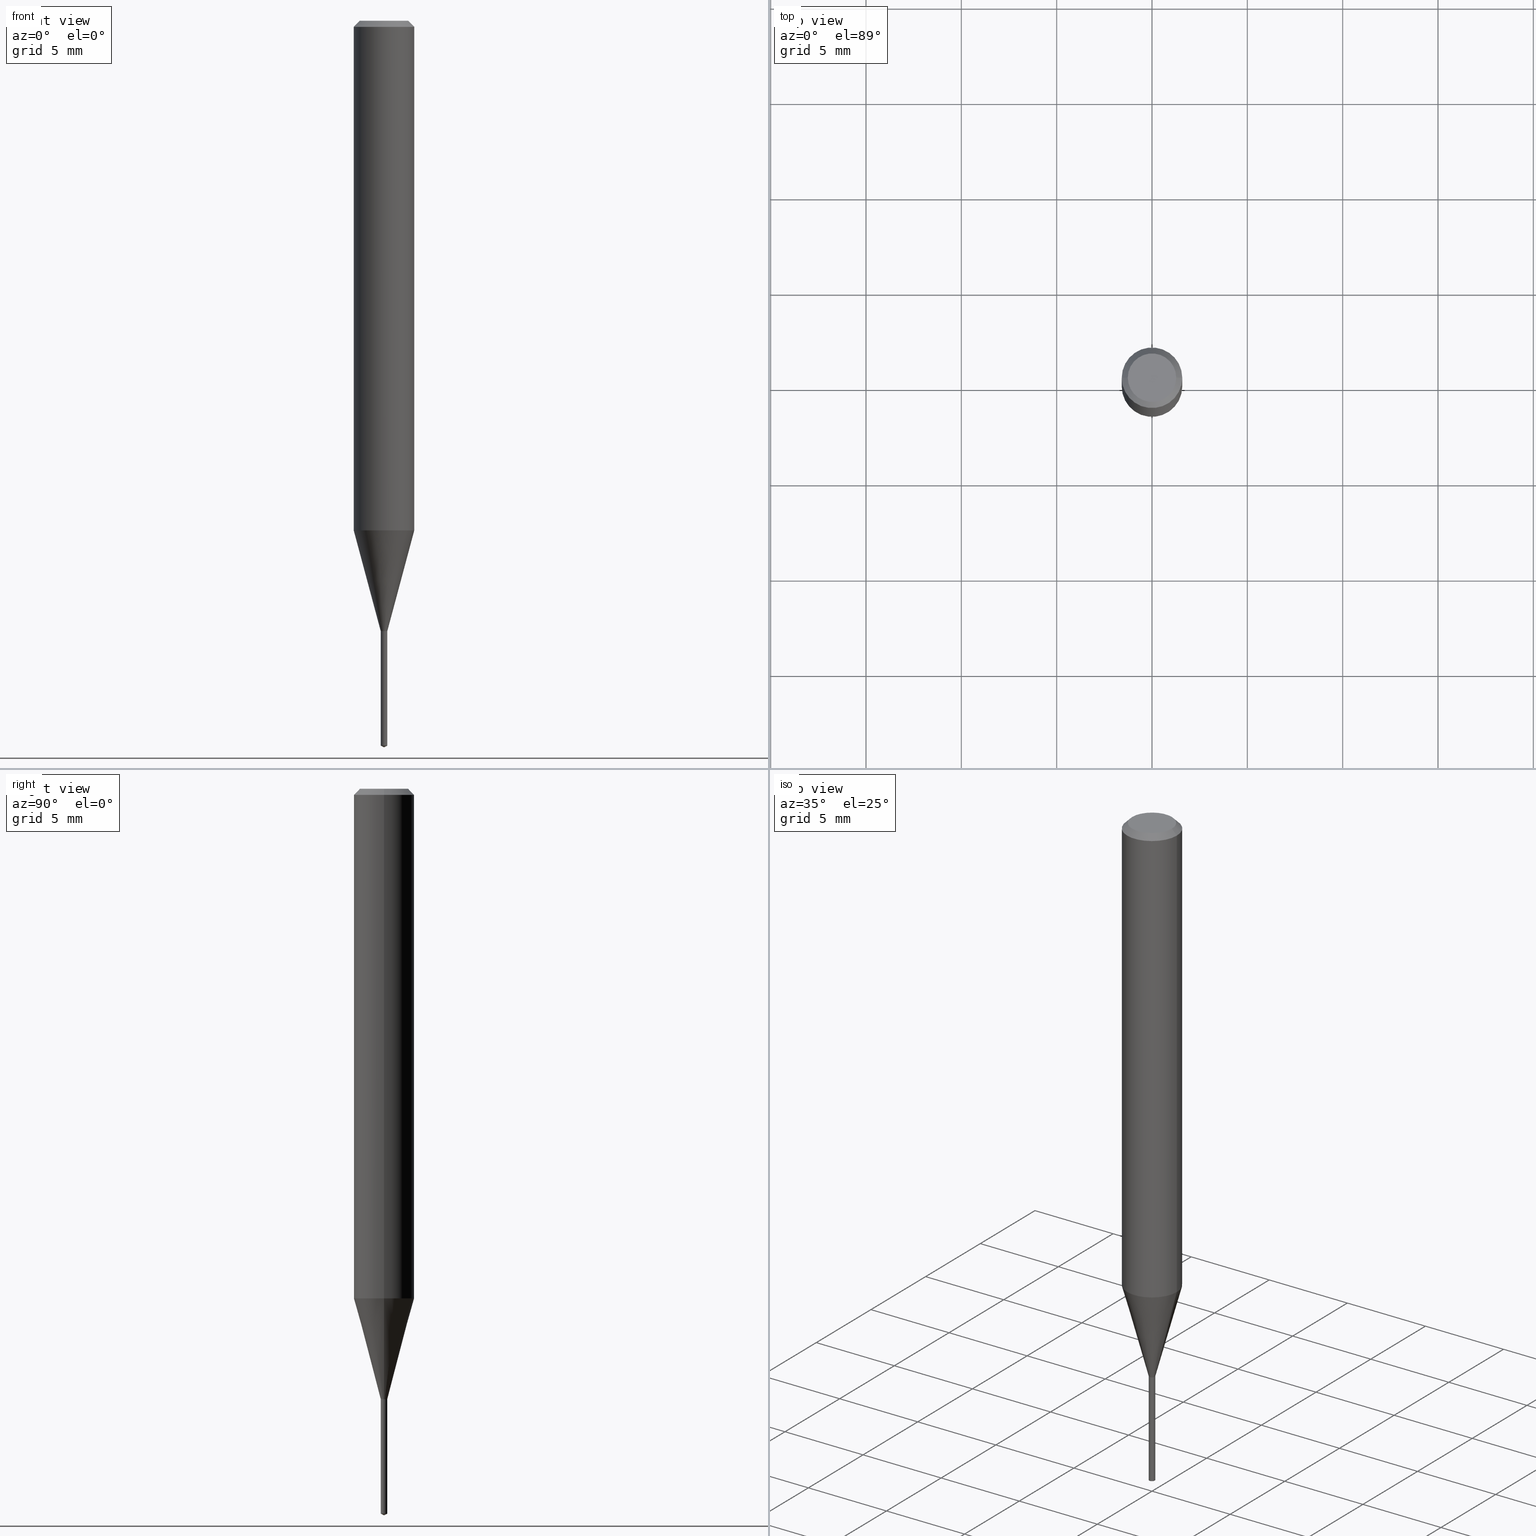
[diagram: canonical four-view strip — front | top / right | iso, engineering-drawing reading convention]
A machine part, canonical four-view strip (front | top / right | iso — engineering-drawing reading convention). The complete STEP part file that produces these views, byte-faithful:
ISO-10303-21;
HEADER;
FILE_DESCRIPTION (( 'STEP AP203' ),
    '1' );
FILE_NAME ('07107.STEP',
    '2024-04-23T19:30:40',
    ( '' ),
    ( '' ),
    'SwSTEP 2.0',
    'SolidWorks 2023',
    '' );
FILE_SCHEMA (( 'CONFIG_CONTROL_DESIGN' ));
ENDSEC;

DATA;
#1 = ORIENTED_EDGE ( 'NONE', *, *, #152, .T. ) ;
#2 = AXIS2_PLACEMENT_3D ( 'NONE', #202, #116, #149 ) ;
#3 = DIRECTION ( 'NONE',  ( -2.441881793894503225E-29, 3.496618144603393422E-15, 1.000000000000000000 ) ) ;
#4 = CC_DESIGN_PERSON_AND_ORGANIZATION_ASSIGNMENT ( #57, #292, ( #89 ) ) ;
#5 = CARTESIAN_POINT ( 'NONE',  ( 2.573460162125579230E-29, -3.674219073901972026E-15, -1.052338167478040765 ) ) ;
#6 = DIRECTION ( 'NONE',  ( 2.438088387897960049E-29, -3.491481338843145188E-15, -1.000000000000000000 ) ) ;
#7 = DIRECTION ( 'NONE',  ( -6.982962677686268288E-15, -1.000000000000000000, 3.520397390770522895E-15 ) ) ;
#8 = DIRECTION ( 'NONE',  ( -2.445468806185136597E-29, 3.491481338843145583E-15, 1.000000000000000000 ) ) ;
#9 =( LENGTH_UNIT ( ) NAMED_UNIT ( * ) SI_UNIT ( $, .METRE. ) );
#10 = ADVANCED_FACE ( 'NONE', ( #219 ), #378, .T. ) ;
#11 = LINE ( 'NONE', #237, #486 ) ;
#12 = CIRCLE ( 'NONE', #127, 0.006749999999999999056 ) ;
#13 = DIRECTION ( 'NONE',  ( -6.982962677686265133E-15, -1.000000000000000000, 0.000000000000000000 ) ) ;
#14 = CARTESIAN_POINT ( 'NONE',  ( 0.04999999999999999584, -4.077247707424184705E-16, 3.380025165673154903E-19 ) ) ;
#15 = CARTESIAN_POINT ( 'NONE',  ( 2.983471943545866670E-29, -4.259607233388637524E-15, -1.220000000000000195 ) ) ;
#16 = CARTESIAN_POINT ( 'NONE',  ( 0.006249999999999998612, -4.303250750124177480E-15, -1.220000000000000195 ) ) ;
#17 = ORIENTED_EDGE ( 'NONE', *, *, #305, .T. ) ;
#18 = APPROVAL_STATUS ( 'not_yet_approved' ) ;
#19 = CARTESIAN_POINT ( 'NONE',  ( 2.982249209142773869E-29, -4.257861492719216809E-15, -1.219500000000000028 ) ) ;
#20 = VERTEX_POINT ( 'NONE', #104 ) ;
#21 = VECTOR ( 'NONE', #126, 39.37007874015748143 ) ;
#22 = ADVANCED_FACE ( 'NONE', ( #254 ), #408, .F. ) ;
#23 = APPROVAL_DATE_TIME ( #241, #320 ) ;
#24 = FACE_OUTER_BOUND ( 'NONE', #169, .T. ) ;
#25 = PERSON_AND_ORGANIZATION ( #69, #390 ) ;
#26 = ORIENTED_EDGE ( 'NONE', *, *, #401, .F. ) ;
#27 = ADVANCED_FACE ( 'NONE', ( #257 ), #336, .T. ) ;
#28 = VERTEX_POINT ( 'NONE', #384 ) ;
#29 = AXIS2_PLACEMENT_3D ( 'NONE', #121, #76, #84 ) ;
#30 = CALENDAR_DATE ( 2024, 23, 4 ) ;
#31 = CC_DESIGN_APPROVAL ( #459, ( #461 ) ) ;
#32 = VERTEX_POINT ( 'NONE', #381 ) ;
#33 = PRODUCT_DEFINITION_SHAPE ( 'NONE', 'NONE',  #89 ) ;
#34 = DESIGN_CONTEXT ( 'detailed design', #451, 'design' ) ;
#35 = ORIENTED_EDGE ( 'NONE', *, *, #124, .T. ) ;
#36 = EDGE_LOOP ( 'NONE', ( #339, #414 ) ) ;
#37 = ORIENTED_EDGE ( 'NONE', *, *, #282, .F. ) ;
#38 = VERTEX_POINT ( 'NONE', #49 ) ;
#39 = DIRECTION ( 'NONE',  ( -2.445468806185136597E-29, 3.491481338843145583E-15, 1.000000000000000000 ) ) ;
#40 = EDGE_CURVE ( 'NONE', #376, #32, #197, .T. ) ;
#41 = DIRECTION ( 'NONE',  ( 0.7071067811865225927, -2.468850131081995948E-15, 0.7071067811865724417 ) ) ;
#42 = CIRCLE ( 'NONE', #184, 0.06250000000000013878 ) ;
#43 = CIRCLE ( 'NONE', #353, 0.06250000000000013878 ) ;
#44 = CARTESIAN_POINT ( 'NONE',  ( 0.000000000000000000, 0.000000000000000000, 0.000000000000000000 ) ) ;
#45 = FACE_OUTER_BOUND ( 'NONE', #260, .T. ) ;
#46 = DIRECTION ( 'NONE',  ( 1.000000000000000000, -6.982962677686266711E-15, 0.000000000000000000 ) ) ;
#47 = EDGE_CURVE ( 'NONE', #175, #38, #115, .T. ) ;
#48 = LINE ( 'NONE', #345, #322 ) ;
#49 = CARTESIAN_POINT ( 'NONE',  ( 0.06250000000000000000, -4.800786840909313294E-16, -0.01250000000000008396 ) ) ;
#50 = DIRECTION ( 'NONE',  ( -2.441881793894503225E-29, 3.496618144603393422E-15, 1.000000000000000000 ) ) ;
#51 = CARTESIAN_POINT ( 'NONE',  ( -4.713499807434570159E-17, -0.006750000000005226646, -1.496852423307453828 ) ) ;
#52 = DIRECTION ( 'NONE',  ( -2.445468806185136597E-29, 3.491481338843145583E-15, 1.000000000000000000 ) ) ;
#53 = CARTESIAN_POINT ( 'NONE',  ( 3.671651748258232089E-29, -5.232393410850085965E-15, -1.500000000000000222 ) ) ;
#54 = ORIENTED_EDGE ( 'NONE', *, *, #342, .F. ) ;
#55 =( NAMED_UNIT ( * ) SI_UNIT ( $, .STERADIAN. ) SOLID_ANGLE_UNIT ( ) );
#56 = DIRECTION ( 'NONE',  ( -2.445468806185136597E-29, 3.491481338843145583E-15, 1.000000000000000000 ) ) ;
#57 = PERSON_AND_ORGANIZATION ( #69, #390 ) ;
#58 = CARTESIAN_POINT ( 'NONE',  ( -9.246987965394727264E-28, 1.324234713634213705E-13, 37.87007874015748143 ) ) ;
#59 = CONICAL_SURFACE ( 'NONE', #29, 0.006249999999999998612, 0.7853981633974130849 ) ;
#60 = ORIENTED_EDGE ( 'NONE', *, *, #457, .T. ) ;
#61 = EDGE_LOOP ( 'NONE', ( #1, #440, #358, #132 ) ) ;
#62 = EDGE_CURVE ( 'NONE', #38, #301, #238, .T. ) ;
#63 = CALENDAR_DATE ( 2024, 23, 4 ) ;
#64 = ORIENTED_EDGE ( 'NONE', *, *, #450, .F. ) ;
#65 = CONICAL_SURFACE ( 'NONE', #200, 84.42940631927268669, 1.134464013796308457 ) ;
#66 = ORIENTED_EDGE ( 'NONE', *, *, #272, .F. ) ;
#67 = VERTEX_POINT ( 'NONE', #14 ) ;
#68 = ADVANCED_FACE ( 'NONE', ( #346 ), #455, .F. ) ;
#69 = PERSON ( 'UNSPECIFIED', 'UNSPECIFIED', 'UNSPECIFIED', ('UNSPECIFIED'), ('UNSPECIFIED'), ('UNSPECIFIED') ) ;
#70 = VERTEX_POINT ( 'NONE', #274 ) ;
#71 = AXIS2_PLACEMENT_3D ( 'NONE', #273, #467, #429 ) ;
#72 = EDGE_LOOP ( 'NONE', ( #243, #489, #222 ) ) ;
#73 = EDGE_CURVE ( 'NONE', #143, #252, #352, .T. ) ;
#74 = DIRECTION ( 'NONE',  ( -2.445468806185136597E-29, 3.491481338843145583E-15, 1.000000000000000000 ) ) ;
#75 = LINE ( 'NONE', #83, #134 ) ;
#76 = DIRECTION ( 'NONE',  ( -2.445468806185136597E-29, 3.491481338843145583E-15, 1.000000000000000000 ) ) ;
#77 = FACE_OUTER_BOUND ( 'NONE', #36, .T. ) ;
#78 = AXIS2_PLACEMENT_3D ( 'NONE', #240, #164, #93 ) ;
#79 = DIRECTION ( 'NONE',  ( 0.7071067811865452413, -7.319954787623248157E-15, -0.7071067811865497932 ) ) ;
#80 = EDGE_CURVE ( 'NONE', #67, #38, #11, .T. ) ;
#81 = LINE ( 'NONE', #422, #185 ) ;
#82 = DIRECTION ( 'NONE',  ( -6.328713451373352024E-15, -0.9063077870366459399, 0.4226182617407078790 ) ) ;
#83 = CARTESIAN_POINT ( 'NONE',  ( 0.006249999999999998612, -4.303250750124177480E-15, -1.220000000000000195 ) ) ;
#84 = DIRECTION ( 'NONE',  ( 1.000000000000000000, -6.982962677686295898E-15, 0.000000000000000000 ) ) ;
#85 = CARTESIAN_POINT ( 'NONE',  ( 4.796163466383658464E-17, 0.006749999999995738575, -1.220000000000000195 ) ) ;
#86 = LINE ( 'NONE', #286, #344 ) ;
#87 = LOCAL_TIME ( 15, 30, 40.00000000000000000, #136 ) ;
#88 = PERSON_AND_ORGANIZATION ( #69, #390 ) ;
#89 = PRODUCT_DEFINITION ( 'UNKNOWN', '', #375, #34 ) ;
#90 = DIRECTION ( 'NONE',  ( -2.445468806185136597E-29, 3.491481338843145583E-15, 1.000000000000000000 ) ) ;
#91 = ORIENTED_EDGE ( 'NONE', *, *, #80, .T. ) ;
#92 = DIRECTION ( 'NONE',  ( 1.000000000000000000, 0.000000000000000000, 0.000000000000000000 ) ) ;
#93 = DIRECTION ( 'NONE',  ( 1.000000000000000000, -6.982962677686295898E-15, 0.000000000000000000 ) ) ;
#94 = ORIENTED_EDGE ( 'NONE', *, *, #253, .F. ) ;
#95 = COORDINATED_UNIVERSAL_TIME_OFFSET ( 5, 0, .BEHIND. ) ;
#96 = FACE_OUTER_BOUND ( 'NONE', #72, .T. ) ;
#97 = AXIS2_PLACEMENT_3D ( 'NONE', #269, #39, #46 ) ;
#98 = VERTEX_POINT ( 'NONE', #225 ) ;
#99 = LOCAL_TIME ( 15, 30, 40.00000000000000000, #325 ) ;
#100 = ADVANCED_FACE ( 'NONE', ( #430 ), #176, .T. ) ;
#101 = APPROVAL_ROLE ( '' ) ;
#102 = ORIENTED_EDGE ( 'NONE', *, *, #347, .F. ) ;
#103 = MANIFOLD_SOLID_BREP ( 'Body-Move/Copy2[2]', #215 ) ;
#104 = CARTESIAN_POINT ( 'NONE',  ( -0.06250000000000013878, -3.230129864051909015E-15, -1.052338167478040765 ) ) ;
#105 = ORIENTED_EDGE ( 'NONE', *, *, #298, .T. ) ;
#106 = AXIS2_PLACEMENT_3D ( 'NONE', #209, #90, #396 ) ;
#107 = ADVANCED_FACE ( 'NONE', ( #161 ), #59, .T. ) ;
#108 = CARTESIAN_POINT ( 'NONE',  ( 2.983471943545866670E-29, -4.259607233388637524E-15, -1.220000000000000195 ) ) ;
#109 = EDGE_LOOP ( 'NONE', ( #287, #371, #435, #64 ) ) ;
#110 = ORIENTED_EDGE ( 'NONE', *, *, #416, .T. ) ;
#111 = ADVANCED_FACE ( 'NONE', ( #227 ), #386, .T. ) ;
#112 = DIRECTION ( 'NONE',  ( -1.000000000000000000, 6.982962677686265922E-15, -4.876176775795935793E-29 ) ) ;
#113 = CYLINDRICAL_SURFACE ( 'NONE', #289, 0.006749999999999999056 ) ;
#114 = LINE ( 'NONE', #85, #270 ) ;
#115 = LINE ( 'NONE', #423, #208 ) ;
#116 = DIRECTION ( 'NONE',  ( 2.445468806185136597E-29, -3.491481338843145583E-15, -1.000000000000000000 ) ) ;
#117 = AXIS2_PLACEMENT_3D ( 'NONE', #163, #52, #431 ) ;
#118 = CONICAL_SURFACE ( 'NONE', #177, 84.42940631927268669, 1.134464013796308457 ) ;
#119 = DIRECTION ( 'NONE',  ( -2.445468806185136597E-29, 3.491481338843145583E-15, 1.000000000000000000 ) ) ;
#120 = CARTESIAN_POINT ( 'NONE',  ( -0.006249999999999998612, -4.212549085229521008E-15, -1.220000000000000195 ) ) ;
#121 = CARTESIAN_POINT ( 'NONE',  ( 2.983471943545866670E-29, -4.259607233388637524E-15, -1.220000000000000195 ) ) ;
#122 = DIRECTION ( 'NONE',  ( -2.445468806185136597E-29, 3.491481338843145583E-15, 1.000000000000000000 ) ) ;
#123 = CYLINDRICAL_SURFACE ( 'NONE', #441, 0.006749999999999999056 ) ;
#124 = EDGE_CURVE ( 'NONE', #211, #98, #389, .T. ) ;
#125 = AXIS2_PLACEMENT_3D ( 'NONE', #138, #294, #446 ) ;
#126 = DIRECTION ( 'NONE',  ( -0.7071067811865452413, 2.468850131082233000E-15, -0.7071067811865497932 ) ) ;
#127 = AXIS2_PLACEMENT_3D ( 'NONE', #356, #50, #226 ) ;
#128 = DIRECTION ( 'NONE',  ( -2.445468806185136877E-29, 3.491481338843145188E-15, 1.000000000000000000 ) ) ;
#129 = ORIENTED_EDGE ( 'NONE', *, *, #347, .T. ) ;
#130 = PERSON_AND_ORGANIZATION ( #69, #390 ) ;
#131 = FACE_OUTER_BOUND ( 'NONE', #444, .T. ) ;
#132 = ORIENTED_EDGE ( 'NONE', *, *, #47, .F. ) ;
#133 = VECTOR ( 'NONE', #82, 39.37007874015748143 ) ;
#134 = VECTOR ( 'NONE', #41, 39.37007874015748143 ) ;
#135 = APPROVAL_PERSON_ORGANIZATION ( #88, #320, #101 ) ;
#136 = COORDINATED_UNIVERSAL_TIME_OFFSET ( 5, 0, .BEHIND. ) ;
#137 = DIMENSIONAL_EXPONENTS ( 1.000000000000000000, 0.000000000000000000, 0.000000000000000000, 0.000000000000000000, 0.000000000000000000, 0.000000000000000000, 0.000000000000000000 ) ;
#138 = CARTESIAN_POINT ( 'NONE',  ( 0.000000000000000000, 0.000000000000000000, 0.000000000000000000 ) ) ;
#139 = CC_DESIGN_PERSON_AND_ORGANIZATION_ASSIGNMENT ( #395, #475, ( #375 ) ) ;
#140 = VERTEX_POINT ( 'NONE', #195 ) ;
#141 = AXIS2_PLACEMENT_3D ( 'NONE', #108, #188, #341 ) ;
#142 = PRODUCT_RELATED_PRODUCT_CATEGORY ( 'detail', '', ( #483 ) ) ;
#143 = VERTEX_POINT ( 'NONE', #51 ) ;
#144 = ORIENTED_EDGE ( 'NONE', *, *, #366, .F. ) ;
#145 = EDGE_CURVE ( 'NONE', #98, #32, #379, .T. ) ;
#146 = ORIENTED_EDGE ( 'NONE', *, *, #235, .T. ) ;
#147 = CIRCLE ( 'NONE', #156, 0.006749999999999999056 ) ;
#148 = FACE_OUTER_BOUND ( 'NONE', #178, .T. ) ;
#149 = DIRECTION ( 'NONE',  ( -1.000000000000000000, 6.982962677686266711E-15, 0.000000000000000000 ) ) ;
#150 = CARTESIAN_POINT ( 'NONE',  ( -4.132873053354867254E-48, 5.900647395337818946E-34, 1.690012582823346072E-19 ) ) ;
#151 = DIRECTION ( 'NONE',  ( 1.000000000000000000, -6.982962677686262766E-15, 0.000000000000000000 ) ) ;
#152 = EDGE_CURVE ( 'NONE', #175, #20, #42, .T. ) ;
#153 = DIRECTION ( 'NONE',  ( 1.000000000000000000, -6.982962677686262766E-15, 0.000000000000000000 ) ) ;
#154 = AXIS2_PLACEMENT_3D ( 'NONE', #44, #388, #458 ) ;
#155 = DIRECTION ( 'NONE',  ( -2.441881793894502945E-29, 3.496618144603393422E-15, 1.000000000000000000 ) ) ;
#156 = AXIS2_PLACEMENT_3D ( 'NONE', #275, #462, #268 ) ;
#157 = LOCAL_TIME ( 15, 30, 40.00000000000000000, #95 ) ;
#158 = CARTESIAN_POINT ( 'NONE',  ( -0.006249999999999998612, -4.215198312403631420E-15, -1.220000000000000195 ) ) ;
#159 = APPLICATION_CONTEXT ( 'configuration controlled 3d designs of mechanical parts and assemblies' ) ;
#160 = DIRECTION ( 'NONE',  ( -2.445468806185136597E-29, 3.491481338843145583E-15, 1.000000000000000000 ) ) ;
#161 = FACE_OUTER_BOUND ( 'NONE', #224, .T. ) ;
#162 = EDGE_CURVE ( 'NONE', #20, #301, #454, .T. ) ;
#163 = CARTESIAN_POINT ( 'NONE',  ( -8.265746106709734507E-48, 1.180129479067563789E-33, 3.380025165646692144E-19 ) ) ;
#164 = DIRECTION ( 'NONE',  ( -2.445468806185136597E-29, 3.491481338843145583E-15, 1.000000000000000000 ) ) ;
#165 = ORIENTED_EDGE ( 'NONE', *, *, #80, .F. ) ;
#166 = LENGTH_MEASURE_WITH_UNIT ( LENGTH_MEASURE( 0.02539999999999999897 ), #9 );
#167 = DIRECTION ( 'NONE',  ( -2.445468806185136597E-29, 3.491481338843145583E-15, 1.000000000000000000 ) ) ;
#168 = CIRCLE ( 'NONE', #338, 0.06250000000000000000 ) ;
#169 = EDGE_LOOP ( 'NONE', ( #165, #369, #397, #245 ) ) ;
#170 = COORDINATED_UNIVERSAL_TIME_OFFSET ( 5, 0, .BEHIND. ) ;
#171 = ADVANCED_FACE ( 'NONE', ( #148 ), #113, .T. ) ;
#172 = DIRECTION ( 'NONE',  ( -6.982962677686268288E-15, -1.000000000000000000, 3.520397390770522895E-15 ) ) ;
#173 = EDGE_LOOP ( 'NONE', ( #102, #91, #280, #37 ) ) ;
#174 = DATE_AND_TIME ( #247, #157 ) ;
#175 = VERTEX_POINT ( 'NONE', #310 ) ;
#176 = CONICAL_SURFACE ( 'NONE', #337, 0.006749999999999999056, 0.2617993877991569573 ) ;
#177 = AXIS2_PLACEMENT_3D ( 'NONE', #58, #249, #172 ) ;
#178 = EDGE_LOOP ( 'NONE', ( #394, #335, #221, #340 ) ) ;
#179 = DATE_TIME_ROLE ( 'creation_date' ) ;
#180 = EDGE_LOOP ( 'NONE', ( #66, #183 ) ) ;
#181 = EDGE_CURVE ( 'NONE', #478, #143, #460, .T. ) ;
#182 = ORIENTED_EDGE ( 'NONE', *, *, #457, .F. ) ;
#183 = ORIENTED_EDGE ( 'NONE', *, *, #416, .F. ) ;
#184 = AXIS2_PLACEMENT_3D ( 'NONE', #355, #8, #153 ) ;
#185 = VECTOR ( 'NONE', #196, 39.37007874015748854 ) ;
#186 = EDGE_CURVE ( 'NONE', #478, #252, #234, .T. ) ;
#187 = ORIENTED_EDGE ( 'NONE', *, *, #162, .F. ) ;
#188 = DIRECTION ( 'NONE',  ( -2.441881793894503225E-29, 3.496618144603393422E-15, 1.000000000000000000 ) ) ;
#189 = CARTESIAN_POINT ( 'NONE',  ( 3.082268883315746308E-29, -4.400663079477901323E-15, -1.260399999999999965 ) ) ;
#190 = CIRCLE ( 'NONE', #71, 0.006749999999999999056 ) ;
#191 = DIRECTION ( 'NONE',  ( 1.000000000000000000, -6.982962677686295898E-15, 0.000000000000000000 ) ) ;
#192 = CARTESIAN_POINT ( 'NONE',  ( 3.082268883315746308E-29, -4.400663079477901323E-15, -1.260399999999999965 ) ) ;
#193 = ADVANCED_FACE ( 'NONE', ( #131 ), #362, .T. ) ;
#194 = CARTESIAN_POINT ( 'NONE',  ( -9.246987965394727264E-28, 1.324234713634213705E-13, 37.87007874015748143 ) ) ;
#195 = CARTESIAN_POINT ( 'NONE',  ( 4.796163466384340706E-17, 0.006749999999995738575, -1.220000000000000195 ) ) ;
#196 = DIRECTION ( 'NONE',  ( 0.2588190451025279559, 1.565188264969568522E-15, 0.9659258262890662028 ) ) ;
#197 = LINE ( 'NONE', #158, #469 ) ;
#198 = VECTOR ( 'NONE', #349, 39.37007874015748143 ) ;
#199 = DIRECTION ( 'NONE',  ( -2.441881793894503225E-29, 3.496618144603393422E-15, 1.000000000000000000 ) ) ;
#200 = AXIS2_PLACEMENT_3D ( 'NONE', #194, #348, #7 ) ;
#201 = CARTESIAN_POINT ( 'NONE',  ( -0.006749999999999999056, 4.796163466380675584E-17, -3.320281185922061164E-31 ) ) ;
#202 = CARTESIAN_POINT ( 'NONE',  ( 3.056836007731441415E-31, -4.364351673553961684E-17, -0.01250000000000008396 ) ) ;
#203 = DIRECTION ( 'NONE',  ( -2.445468806185136597E-29, 3.491481338843145583E-15, 1.000000000000000000 ) ) ;
#204 = DATE_TIME_ROLE ( 'classification_date' ) ;
#205 = DIRECTION ( 'NONE',  ( 1.000000000000000000, -6.982962677686265922E-15, 4.876194921942043128E-29 ) ) ;
#206 = ORIENTED_EDGE ( 'NONE', *, *, #392, .T. ) ;
#207 = DATE_AND_TIME ( #30, #99 ) ;
#208 = VECTOR ( 'NONE', #463, 39.37007874015748143 ) ;
#209 = CARTESIAN_POINT ( 'NONE',  ( 3.082268883315746308E-29, -4.400663079477901323E-15, -1.260399999999999965 ) ) ;
#210 = LOCAL_TIME ( 15, 30, 40.00000000000000000, #473 ) ;
#211 = VERTEX_POINT ( 'NONE', #242 ) ;
#212 = DATE_AND_TIME ( #433, #87 ) ;
#213 = CALENDAR_DATE ( 2024, 23, 4 ) ;
#214 = DATE_AND_TIME ( #63, #411 ) ;
#215 = CLOSED_SHELL ( 'NONE', ( #385, #359, #27, #193, #259, #22, #100, #111, #309, #68, #266, #107 ) ) ;
#216 = EDGE_CURVE ( 'NONE', #301, #38, #168, .T. ) ;
#217 = CIRCLE ( 'NONE', #333, 0.04999999999999999584 ) ;
#218 = VERTEX_POINT ( 'NONE', #16 ) ;
#219 = FACE_OUTER_BOUND ( 'NONE', #250, .T. ) ;
#220 = CC_DESIGN_DATE_AND_TIME_ASSIGNMENT ( #214, #204, ( #461 ) ) ;
#221 = ORIENTED_EDGE ( 'NONE', *, *, #329, .F. ) ;
#222 = ORIENTED_EDGE ( 'NONE', *, *, #445, .F. ) ;
#223 = AXIS2_PLACEMENT_3D ( 'NONE', #264, #3, #308 ) ;
#224 = EDGE_LOOP ( 'NONE', ( #324, #110, #60, #413 ) ) ;
#225 = CARTESIAN_POINT ( 'NONE',  ( -0.006749999999999999056, -4.281300651434752064E-15, -1.260399999999999965 ) ) ;
#226 = DIRECTION ( 'NONE',  ( -6.982962677686265133E-15, -1.000000000000000000, 0.000000000000000000 ) ) ;
#227 = FACE_OUTER_BOUND ( 'NONE', #258, .T. ) ;
#228 = CC_DESIGN_PERSON_AND_ORGANIZATION_ASSIGNMENT ( #407, #368, ( #375 ) ) ;
#229 = AXIS2_PLACEMENT_3D ( 'NONE', #279, #437, #432 ) ;
#230 = CARTESIAN_POINT ( 'NONE',  ( 2.983471943545866670E-29, -4.259607233388637524E-15, -1.220000000000000195 ) ) ;
#231 = DIRECTION ( 'NONE',  ( 1.000000000000000000, -6.982962677686226479E-15, 0.000000000000000000 ) ) ;
#232 = CC_DESIGN_PERSON_AND_ORGANIZATION_ASSIGNMENT ( #25, #361, ( #461 ) ) ;
#233 = CARTESIAN_POINT ( 'NONE',  ( 3.662822690841755118E-29, -5.244927216905089936E-15, -1.500000000000000222 ) ) ;
#234 = LINE ( 'NONE', #53, #302 ) ;
#235 = EDGE_CURVE ( 'NONE', #98, #20, #86, .T. ) ;
#236 = DIRECTION ( 'NONE',  ( 6.982962677686265922E-15, 1.000000000000000000, -3.496618144603393422E-15 ) ) ;
#237 = CARTESIAN_POINT ( 'NONE',  ( 0.06250000000000000000, -4.724246415962603826E-16, -0.01250000000000008396 ) ) ;
#238 = CIRCLE ( 'NONE', #97, 0.06250000000000000000 ) ;
#239 = FACE_OUTER_BOUND ( 'NONE', #173, .T. ) ;
#240 = CARTESIAN_POINT ( 'NONE',  ( 2.983471943545866670E-29, -4.259607233388637524E-15, -1.220000000000000195 ) ) ;
#241 = DATE_AND_TIME ( #213, #210 ) ;
#242 = CARTESIAN_POINT ( 'NONE',  ( 0.006749999999999999056, -4.447798077552283497E-15, -1.260399999999999965 ) ) ;
#243 = ORIENTED_EDGE ( 'NONE', *, *, #186, .F. ) ;
#244 = CARTESIAN_POINT ( 'NONE',  ( -0.06250000000000000000, -1.414842085468692191E-15, -0.01250000000000008396 ) ) ;
#245 = ORIENTED_EDGE ( 'NONE', *, *, #216, .T. ) ;
#246 = ADVANCED_FACE ( 'NONE', ( #96 ), #118, .T. ) ;
#247 = CALENDAR_DATE ( 2024, 23, 4 ) ;
#248 = CONICAL_SURFACE ( 'NONE', #2, 0.06250000000000000000, 0.7853981633974450594 ) ;
#249 = DIRECTION ( 'NONE',  ( -2.441881793894503225E-29, 3.496618144603393422E-15, 1.000000000000000000 ) ) ;
#250 = EDGE_LOOP ( 'NONE', ( #144, #485, #405, #54 ) ) ;
#251 = SHAPE_DEFINITION_REPRESENTATION ( #33, #297 ) ;
#252 = VERTEX_POINT ( 'NONE', #315 ) ;
#253 = EDGE_CURVE ( 'NONE', #211, #318, #360, .T. ) ;
#254 = FACE_OUTER_BOUND ( 'NONE', #415, .T. ) ;
#255 = AXIS2_PLACEMENT_3D ( 'NONE', #150, #6, #112 ) ;
#256 = CIRCLE ( 'NONE', #404, 0.006249999999999998612 ) ;
#257 = FACE_OUTER_BOUND ( 'NONE', #61, .T. ) ;
#258 = EDGE_LOOP ( 'NONE', ( #187, #261, #299, #481 ) ) ;
#259 = ADVANCED_FACE ( 'NONE', ( #466 ), #123, .F. ) ;
#260 = EDGE_LOOP ( 'NONE', ( #418, #449, #330 ) ) ;
#261 = ORIENTED_EDGE ( 'NONE', *, *, #450, .T. ) ;
#262 = CC_DESIGN_APPROVAL ( #291, ( #89 ) ) ;
#263 = APPROVAL_PERSON_ORGANIZATION ( #130, #459, #442 ) ;
#264 = CARTESIAN_POINT ( 'NONE',  ( 3.659512835615912668E-29, -5.227654440102900244E-15, -1.496852423307453828 ) ) ;
#265 = DIRECTION ( 'NONE',  ( -2.445468806185136597E-29, 3.491481338843145583E-15, 1.000000000000000000 ) ) ;
#266 = ADVANCED_FACE ( 'NONE', ( #283 ), #357, .F. ) ;
#267 = CARTESIAN_POINT ( 'NONE',  ( 2.983471943545866670E-29, -4.259607233388637524E-15, -1.220000000000000195 ) ) ;
#268 = DIRECTION ( 'NONE',  ( 1.000000000000000000, -6.982962677686226479E-15, 0.000000000000000000 ) ) ;
#269 = CARTESIAN_POINT ( 'NONE',  ( 3.056836007731441415E-31, -4.364351673553961684E-17, -0.01250000000000008396 ) ) ;
#270 = VECTOR ( 'NONE', #155, 39.37007874015748143 ) ;
#271 = CARTESIAN_POINT ( 'NONE',  ( 3.662822690841755118E-29, -5.244927216905089936E-15, -1.500000000000000222 ) ) ;
#272 = EDGE_CURVE ( 'NONE', #218, #376, #424, .T. ) ;
#273 = CARTESIAN_POINT ( 'NONE',  ( 2.982249209142773869E-29, -4.257861492719216809E-15, -1.219500000000000028 ) ) ;
#274 = CARTESIAN_POINT ( 'NONE',  ( -4.713499807435245005E-17, -0.006750000000004258670, -1.220000000000000195 ) ) ;
#275 = CARTESIAN_POINT ( 'NONE',  ( 3.082268883315746308E-29, -4.400663079477901323E-15, -1.260399999999999965 ) ) ;
#276 = CARTESIAN_POINT ( 'NONE',  ( 0.000000000000000000, 0.000000000000000000, 0.000000000000000000 ) ) ;
#277 = APPROVAL_ROLE ( '' ) ;
#278 = AXIS2_PLACEMENT_3D ( 'NONE', #230, #383, #236 ) ;
#279 = CARTESIAN_POINT ( 'NONE',  ( 2.983471943545866670E-29, -4.259607233388637524E-15, -1.220000000000000195 ) ) ;
#280 = ORIENTED_EDGE ( 'NONE', *, *, #62, .T. ) ;
#281 =( CONVERSION_BASED_UNIT ( 'INCH', #166 ) LENGTH_UNIT ( ) NAMED_UNIT ( #137 ) );
#282 = EDGE_CURVE ( 'NONE', #28, #301, #323, .T. ) ;
#283 = FACE_OUTER_BOUND ( 'NONE', #180, .T. ) ;
#284 = EDGE_LOOP ( 'NONE', ( #373, #490, #452, #182 ) ) ;
#285 = APPROVAL_STATUS ( 'not_yet_approved' ) ;
#286 = CARTESIAN_POINT ( 'NONE',  ( -0.006749999999999999056, -4.352701444814094321E-15, -1.260399999999999965 ) ) ;
#287 = ORIENTED_EDGE ( 'NONE', *, *, #235, .F. ) ;
#288 = PERSON_AND_ORGANIZATION ( #69, #390 ) ;
#289 = AXIS2_PLACEMENT_3D ( 'NONE', #267, #427, #421 ) ;
#290 = CIRCLE ( 'NONE', #410, 0.006749999999999999056 ) ;
#291 = APPROVAL ( #18, 'UNSPECIFIED' ) ;
#292 = PERSON_AND_ORGANIZATION_ROLE ( 'creator' ) ;
#293 = EDGE_LOOP ( 'NONE', ( #105, #129 ) ) ;
#294 = DIRECTION ( 'NONE',  ( -2.445468806185136597E-29, 3.491481338843145583E-15, 1.000000000000000000 ) ) ;
#295 = CIRCLE ( 'NONE', #117, 0.04999999999999999584 ) ;
#296 = CARTESIAN_POINT ( 'NONE',  ( 0.000000000000000000, 0.000000000000000000, 0.000000000000000000 ) ) ;
#297 = ADVANCED_BREP_SHAPE_REPRESENTATION ( '07107', ( #428, #103, #374 ), #311 ) ;
#298 = EDGE_CURVE ( 'NONE', #28, #67, #217, .T. ) ;
#299 = ORIENTED_EDGE ( 'NONE', *, *, #47, .T. ) ;
#300 = ORIENTED_EDGE ( 'NONE', *, *, #253, .T. ) ;
#301 = VERTEX_POINT ( 'NONE', #244 ) ;
#302 = VECTOR ( 'NONE', #477, 39.37007874015748854 ) ;
#303 = AXIS2_PLACEMENT_3D ( 'NONE', #465, #122, #316 ) ;
#304 = CC_DESIGN_SECURITY_CLASSIFICATION ( #461, ( #375 ) ) ;
#305 = EDGE_CURVE ( 'NONE', #32, #318, #417, .T. ) ;
#306 = DIRECTION ( 'NONE',  ( -2.445468806185136877E-29, 3.491481338843145188E-15, 1.000000000000000000 ) ) ;
#307 = FACE_OUTER_BOUND ( 'NONE', #284, .T. ) ;
#308 = DIRECTION ( 'NONE',  ( -6.982962677686265133E-15, -1.000000000000000000, 0.000000000000000000 ) ) ;
#309 = ADVANCED_FACE ( 'NONE', ( #24 ), #248, .T. ) ;
#310 = CARTESIAN_POINT ( 'NONE',  ( 0.06250000000000013878, -4.110654241257365273E-15, -1.052338167478040765 ) ) ;
#311 =( GEOMETRIC_REPRESENTATION_CONTEXT ( 3 ) GLOBAL_UNCERTAINTY_ASSIGNED_CONTEXT ( ( #472 ) ) GLOBAL_UNIT_ASSIGNED_CONTEXT ( ( #281, #334, #55 ) ) REPRESENTATION_CONTEXT ( 'NONE', 'WORKASPACE' ) );
#312 = CARTESIAN_POINT ( 'NONE',  ( 3.659512835615912668E-29, -5.227654440102900244E-15, -1.496852423307453828 ) ) ;
#313 = DIRECTION ( 'NONE',  ( 1.000000000000000000, -6.982962677686226479E-15, 0.000000000000000000 ) ) ;
#314 = CARTESIAN_POINT ( 'NONE',  ( 3.056836007731441415E-31, -4.364351673553961684E-17, -0.01250000000000008396 ) ) ;
#315 = CARTESIAN_POINT ( 'NONE',  ( 4.796163466384334543E-17, 0.006749999999994772334, -1.496852423307453828 ) ) ;
#316 = DIRECTION ( 'NONE',  ( 1.000000000000000000, -6.982962677686295898E-15, 0.000000000000000000 ) ) ;
#317 = CARTESIAN_POINT ( 'NONE',  ( -0.06250000000000000000, 3.927916506198520587E-16, -0.01250000000000008396 ) ) ;
#318 = VERTEX_POINT ( 'NONE', #387 ) ;
#319 = VECTOR ( 'NONE', #306, 39.37007874015748143 ) ;
#320 = APPROVAL ( #443, 'UNSPECIFIED' ) ;
#321 = APPROVAL_DATE_TIME ( #212, #291 ) ;
#322 = VECTOR ( 'NONE', #456, 39.37007874015748143 ) ;
#323 = LINE ( 'NONE', #317, #21 ) ;
#324 = ORIENTED_EDGE ( 'NONE', *, *, #40, .F. ) ;
#325 = COORDINATED_UNIVERSAL_TIME_OFFSET ( 5, 0, .BEHIND. ) ;
#326 = DIRECTION ( 'NONE',  ( 1.000000000000000000, -6.982962677686266711E-15, 0.000000000000000000 ) ) ;
#327 = ORIENTED_EDGE ( 'NONE', *, *, #152, .F. ) ;
#328 = APPROVAL_DATE_TIME ( #174, #459 ) ;
#329 = EDGE_CURVE ( 'NONE', #70, #140, #12, .T. ) ;
#330 = ORIENTED_EDGE ( 'NONE', *, *, #73, .F. ) ;
#331 = APPLICATION_PROTOCOL_DEFINITION ( 'international standard', 'config_control_design', 1994, #159 ) ;
#332 = CLOSED_SHELL ( 'NONE', ( #171, #488, #246, #10, #482 ) ) ;
#333 = AXIS2_PLACEMENT_3D ( 'NONE', #434, #56, #205 ) ;
#334 =( NAMED_UNIT ( * ) PLANE_ANGLE_UNIT ( ) SI_UNIT ( $, .RADIAN. ) );
#335 = ORIENTED_EDGE ( 'NONE', *, *, #366, .T. ) ;
#336 = CYLINDRICAL_SURFACE ( 'NONE', #409, 0.06250000000000006939 ) ;
#337 = AXIS2_PLACEMENT_3D ( 'NONE', #189, #74, #313 ) ;
#338 = AXIS2_PLACEMENT_3D ( 'NONE', #399, #474, #326 ) ;
#339 = ORIENTED_EDGE ( 'NONE', *, *, #329, .T. ) ;
#340 = ORIENTED_EDGE ( 'NONE', *, *, #464, .F. ) ;
#341 = DIRECTION ( 'NONE',  ( -6.982962677686265133E-15, -1.000000000000000000, 0.000000000000000000 ) ) ;
#342 = EDGE_CURVE ( 'NONE', #140, #70, #290, .T. ) ;
#343 = CARTESIAN_POINT ( 'NONE',  ( -0.06250000000000006939, 4.440892098500631092E-16, -3.074334431409319267E-30 ) ) ;
#344 = VECTOR ( 'NONE', #439, 39.37007874015748854 ) ;
#345 = CARTESIAN_POINT ( 'NONE',  ( -4.713499807435245005E-17, -0.006750000000004258670, -1.220000000000000195 ) ) ;
#346 = FACE_OUTER_BOUND ( 'NONE', #293, .T. ) ;
#347 = EDGE_CURVE ( 'NONE', #67, #28, #295, .T. ) ;
#348 = DIRECTION ( 'NONE',  ( -2.441881793894503225E-29, 3.496618144603393422E-15, 1.000000000000000000 ) ) ;
#349 = DIRECTION ( 'NONE',  ( -2.445468806185136877E-29, 3.491481338843145188E-15, 1.000000000000000000 ) ) ;
#350 = PLANE ( 'NONE',  #278 ) ;
#351 = DIRECTION ( 'NONE',  ( 1.000000000000000000, -6.982962677686266711E-15, 4.876176775795935793E-29 ) ) ;
#352 = CIRCLE ( 'NONE', #223, 0.006749999999999999924 ) ;
#353 = AXIS2_PLACEMENT_3D ( 'NONE', #5, #160, #151 ) ;
#354 = DIRECTION ( 'NONE',  ( 2.445468806185136597E-29, -3.491481338843145583E-15, -1.000000000000000000 ) ) ;
#355 = CARTESIAN_POINT ( 'NONE',  ( 2.573460162125579230E-29, -3.674219073901972026E-15, -1.052338167478040765 ) ) ;
#356 = CARTESIAN_POINT ( 'NONE',  ( 2.983471943545866670E-29, -4.259607233388637524E-15, -1.220000000000000195 ) ) ;
#357 = PLANE ( 'NONE',  #229 ) ;
#358 = ORIENTED_EDGE ( 'NONE', *, *, #62, .F. ) ;
#359 = ADVANCED_FACE ( 'NONE', ( #239 ), #487, .T. ) ;
#360 = LINE ( 'NONE', #393, #447 ) ;
#361 = PERSON_AND_ORGANIZATION_ROLE ( 'classification_officer' ) ;
#362 = CONICAL_SURFACE ( 'NONE', #106, 0.006749999999999999056, 0.2617993877991569573 ) ;
#363 = DIRECTION ( 'NONE',  ( 1.000000000000000000, -6.982962677686298265E-15, 0.000000000000000000 ) ) ;
#364 = ORIENTED_EDGE ( 'NONE', *, *, #145, .T. ) ;
#365 = CARTESIAN_POINT ( 'NONE',  ( 0.000000000000000000, 0.000000000000000000, 0.000000000000000000 ) ) ;
#366 = EDGE_CURVE ( 'NONE', #252, #140, #114, .T. ) ;
#367 = ORIENTED_EDGE ( 'NONE', *, *, #145, .F. ) ;
#368 = PERSON_AND_ORGANIZATION_ROLE ( 'design_supplier' ) ;
#369 = ORIENTED_EDGE ( 'NONE', *, *, #298, .F. ) ;
#370 = AXIS2_PLACEMENT_3D ( 'NONE', #19, #167, #363 ) ;
#371 = ORIENTED_EDGE ( 'NONE', *, *, #401, .T. ) ;
#372 = ORIENTED_EDGE ( 'NONE', *, *, #124, .F. ) ;
#373 = ORIENTED_EDGE ( 'NONE', *, *, #272, .T. ) ;
#374 = AXIS2_PLACEMENT_3D ( 'NONE', #365, #406, #92 ) ;
#375 = PRODUCT_DEFINITION_FORMATION_WITH_SPECIFIED_SOURCE ( 'ANY', '', #483, .NOT_KNOWN. ) ;
#376 = VERTEX_POINT ( 'NONE', #120 ) ;
#377 = CC_DESIGN_PERSON_AND_ORGANIZATION_ASSIGNMENT ( #288, #398, ( #483 ) ) ;
#378 = CYLINDRICAL_SURFACE ( 'NONE', #141, 0.006749999999999999056 ) ;
#379 = LINE ( 'NONE', #201, #198 ) ;
#380 = DIRECTION ( 'NONE',  ( -6.982962677686265133E-15, -1.000000000000000000, 0.000000000000000000 ) ) ;
#381 = CARTESIAN_POINT ( 'NONE',  ( -0.006749999999999999056, -4.281300651434752064E-15, -1.219500000000000028 ) ) ;
#382 = AXIS2_PLACEMENT_3D ( 'NONE', #312, #420, #13 ) ;
#383 = DIRECTION ( 'NONE',  ( 2.441881793894502945E-29, -3.496618144603393422E-15, -1.000000000000000000 ) ) ;
#384 = CARTESIAN_POINT ( 'NONE',  ( -0.04999999999999999584, 3.709698922520826725E-16, 3.380025165621512536E-19 ) ) ;
#385 = ADVANCED_FACE ( 'NONE', ( #307 ), #471, .T. ) ;
#386 = CYLINDRICAL_SURFACE ( 'NONE', #154, 0.06250000000000006939 ) ;
#387 = CARTESIAN_POINT ( 'NONE',  ( 0.006749999999999999056, -4.304996490793598983E-15, -1.219500000000000028 ) ) ;
#388 = DIRECTION ( 'NONE',  ( -2.445468806185136597E-29, 3.491481338843145583E-15, 1.000000000000000000 ) ) ;
#389 = CIRCLE ( 'NONE', #400, 0.006749999999999999056 ) ;
#390 = ORGANIZATION ( 'UNSPECIFIED', 'UNSPECIFIED', '' ) ;
#391 = CARTESIAN_POINT ( 'NONE',  ( 2.983471943545866670E-29, -4.259607233388637524E-15, -1.220000000000000195 ) ) ;
#392 = EDGE_CURVE ( 'NONE', #318, #32, #190, .T. ) ;
#393 = CARTESIAN_POINT ( 'NONE',  ( 0.006749999999999999056, -4.713499807438229118E-17, 3.291419323662256275E-31 ) ) ;
#394 = ORIENTED_EDGE ( 'NONE', *, *, #73, .T. ) ;
#395 = PERSON_AND_ORGANIZATION ( #69, #390 ) ;
#396 = DIRECTION ( 'NONE',  ( 1.000000000000000000, -6.982962677686226479E-15, 0.000000000000000000 ) ) ;
#397 = ORIENTED_EDGE ( 'NONE', *, *, #282, .T. ) ;
#398 = PERSON_AND_ORGANIZATION_ROLE ( 'design_owner' ) ;
#399 = CARTESIAN_POINT ( 'NONE',  ( 3.056836007731441415E-31, -4.364351673553961684E-17, -0.01250000000000008396 ) ) ;
#400 = AXIS2_PLACEMENT_3D ( 'NONE', #192, #119, #231 ) ;
#401 = EDGE_CURVE ( 'NONE', #98, #211, #147, .T. ) ;
#402 = AXIS2_PLACEMENT_3D ( 'NONE', #314, #354, #426 ) ;
#403 = APPLICATION_PROTOCOL_DEFINITION ( 'international standard', 'config_control_design', 1994, #451 ) ;
#404 = AXIS2_PLACEMENT_3D ( 'NONE', #391, #265, #191 ) ;
#405 = ORIENTED_EDGE ( 'NONE', *, *, #464, .T. ) ;
#406 = DIRECTION ( 'NONE',  ( 0.000000000000000000, 0.000000000000000000, 1.000000000000000000 ) ) ;
#407 = PERSON_AND_ORGANIZATION ( #69, #390 ) ;
#408 = CYLINDRICAL_SURFACE ( 'NONE', #125, 0.006749999999999999056 ) ;
#409 = AXIS2_PLACEMENT_3D ( 'NONE', #296, #448, #351 ) ;
#410 = AXIS2_PLACEMENT_3D ( 'NONE', #15, #199, #380 ) ;
#411 = LOCAL_TIME ( 15, 30, 40.00000000000000000, #170 ) ;
#412 = CC_DESIGN_DATE_AND_TIME_ASSIGNMENT ( #207, #179, ( #89 ) ) ;
#413 = ORIENTED_EDGE ( 'NONE', *, *, #305, .F. ) ;
#414 = ORIENTED_EDGE ( 'NONE', *, *, #342, .T. ) ;
#415 = EDGE_LOOP ( 'NONE', ( #367, #372, #300, #206 ) ) ;
#416 = EDGE_CURVE ( 'NONE', #376, #218, #256, .T. ) ;
#417 = CIRCLE ( 'NONE', #370, 0.006749999999999999056 ) ;
#418 = ORIENTED_EDGE ( 'NONE', *, *, #181, .F. ) ;
#419 = DIRECTION ( 'NONE',  ( -0.7071067811865225927, 7.493145998870264230E-15, 0.7071067811865724417 ) ) ;
#420 = DIRECTION ( 'NONE',  ( -2.441881793894503225E-29, 3.496618144603393422E-15, 1.000000000000000000 ) ) ;
#421 = DIRECTION ( 'NONE',  ( -6.982962677686265133E-15, -1.000000000000000000, 0.000000000000000000 ) ) ;
#422 = CARTESIAN_POINT ( 'NONE',  ( 0.006749999999999999056, -4.447798077552283497E-15, -1.260399999999999965 ) ) ;
#423 = CARTESIAN_POINT ( 'NONE',  ( 0.06250000000000006939, -4.364351673553921624E-16, 3.047610484872463374E-30 ) ) ;
#424 = CIRCLE ( 'NONE', #78, 0.006249999999999998612 ) ;
#425 = CC_DESIGN_APPROVAL ( #320, ( #375 ) ) ;
#426 = DIRECTION ( 'NONE',  ( -1.000000000000000000, 6.982962677686266711E-15, 0.000000000000000000 ) ) ;
#427 = DIRECTION ( 'NONE',  ( -2.441881793894503225E-29, 3.496618144603393422E-15, 1.000000000000000000 ) ) ;
#428 = MANIFOLD_SOLID_BREP ( 'Body-Move/Copy2[1]', #332 ) ;
#429 = DIRECTION ( 'NONE',  ( 1.000000000000000000, -6.982962677686298265E-15, 0.000000000000000000 ) ) ;
#430 = FACE_OUTER_BOUND ( 'NONE', #109, .T. ) ;
#431 = DIRECTION ( 'NONE',  ( 1.000000000000000000, -6.982962677686265922E-15, 4.876194921942043128E-29 ) ) ;
#432 = DIRECTION ( 'NONE',  ( 1.000000000000000000, -6.982962677686265922E-15, 4.876176775795935793E-29 ) ) ;
#433 = CALENDAR_DATE ( 2024, 23, 4 ) ;
#434 = CARTESIAN_POINT ( 'NONE',  ( -8.265746106709734507E-48, 1.180129479067563789E-33, 3.380025165646692144E-19 ) ) ;
#435 = ORIENTED_EDGE ( 'NONE', *, *, #476, .T. ) ;
#436 = MECHANICAL_CONTEXT ( 'NONE', #159, 'mechanical' ) ;
#437 = DIRECTION ( 'NONE',  ( -2.438088387897960049E-29, 3.491481338843145188E-15, 1.000000000000000000 ) ) ;
#438 = SECURITY_CLASSIFICATION_LEVEL ( 'unclassified' ) ;
#439 = DIRECTION ( 'NONE',  ( -0.2588190451025279559, 5.211531920934590485E-15, 0.9659258262890662028 ) ) ;
#440 = ORIENTED_EDGE ( 'NONE', *, *, #162, .T. ) ;
#441 = AXIS2_PLACEMENT_3D ( 'NONE', #276, #203, #468 ) ;
#442 = APPROVAL_ROLE ( '' ) ;
#443 = APPROVAL_STATUS ( 'not_yet_approved' ) ;
#444 = EDGE_LOOP ( 'NONE', ( #35, #146, #327, #470 ) ) ;
#445 = EDGE_CURVE ( 'NONE', #252, #143, #453, .T. ) ;
#446 = DIRECTION ( 'NONE',  ( 1.000000000000000000, -6.982962677686266711E-15, 4.876176775795935793E-29 ) ) ;
#447 = VECTOR ( 'NONE', #128, 39.37007874015748143 ) ;
#448 = DIRECTION ( 'NONE',  ( -2.445468806185136597E-29, 3.491481338843145583E-15, 1.000000000000000000 ) ) ;
#449 = ORIENTED_EDGE ( 'NONE', *, *, #186, .T. ) ;
#450 = EDGE_CURVE ( 'NONE', #20, #175, #43, .T. ) ;
#451 = APPLICATION_CONTEXT ( 'configuration controlled 3d designs of mechanical parts and assemblies' ) ;
#452 = ORIENTED_EDGE ( 'NONE', *, *, #392, .F. ) ;
#453 = CIRCLE ( 'NONE', #382, 0.006749999999999999924 ) ;
#454 = LINE ( 'NONE', #343, #319 ) ;
#455 = PLANE ( 'NONE',  #255 ) ;
#456 = DIRECTION ( 'NONE',  ( -2.441881793894502945E-29, 3.496618144603393422E-15, 1.000000000000000000 ) ) ;
#457 = EDGE_CURVE ( 'NONE', #218, #318, #75, .T. ) ;
#458 = DIRECTION ( 'NONE',  ( 1.000000000000000000, -6.982962677686266711E-15, 4.876176775795935793E-29 ) ) ;
#459 = APPROVAL ( #285, 'UNSPECIFIED' ) ;
#460 = LINE ( 'NONE', #271, #133 ) ;
#461 = SECURITY_CLASSIFICATION ( '', '', #438 ) ;
#462 = DIRECTION ( 'NONE',  ( -2.445468806185136597E-29, 3.491481338843145583E-15, 1.000000000000000000 ) ) ;
#463 = DIRECTION ( 'NONE',  ( -2.445468806185136877E-29, 3.491481338843145188E-15, 1.000000000000000000 ) ) ;
#464 = EDGE_CURVE ( 'NONE', #143, #70, #48, .T. ) ;
#465 = CARTESIAN_POINT ( 'NONE',  ( 2.983471943545866670E-29, -4.259607233388637524E-15, -1.220000000000000195 ) ) ;
#466 = FACE_OUTER_BOUND ( 'NONE', #484, .T. ) ;
#467 = DIRECTION ( 'NONE',  ( -2.445468806185136597E-29, 3.491481338843145583E-15, 1.000000000000000000 ) ) ;
#468 = DIRECTION ( 'NONE',  ( 1.000000000000000000, -6.982962677686266711E-15, 4.876176775795935793E-29 ) ) ;
#469 = VECTOR ( 'NONE', #419, 39.37007874015748143 ) ;
#470 = ORIENTED_EDGE ( 'NONE', *, *, #476, .F. ) ;
#471 = CONICAL_SURFACE ( 'NONE', #303, 0.006249999999999998612, 0.7853981633974130849 ) ;
#472 = UNCERTAINTY_MEASURE_WITH_UNIT (LENGTH_MEASURE( 1.000000000000000082E-05 ), #281, 'distance_accuracy_value', 'NONE');
#473 = COORDINATED_UNIVERSAL_TIME_OFFSET ( 5, 0, .BEHIND. ) ;
#474 = DIRECTION ( 'NONE',  ( -2.445468806185136597E-29, 3.491481338843145583E-15, 1.000000000000000000 ) ) ;
#475 = PERSON_AND_ORGANIZATION_ROLE ( 'creator' ) ;
#476 = EDGE_CURVE ( 'NONE', #211, #175, #81, .T. ) ;
#477 = DIRECTION ( 'NONE',  ( 6.439704144417007476E-15, 0.9063077870366490485, 0.4226182617407015507 ) ) ;
#478 = VERTEX_POINT ( 'NONE', #233 ) ;
#479 = APPROVAL_PERSON_ORGANIZATION ( #480, #291, #277 ) ;
#480 = PERSON_AND_ORGANIZATION ( #69, #390 ) ;
#481 = ORIENTED_EDGE ( 'NONE', *, *, #216, .F. ) ;
#482 = ADVANCED_FACE ( 'NONE', ( #77 ), #350, .F. ) ;
#483 = PRODUCT ( '07107', '07107', '', ( #436 ) ) ;
#484 = EDGE_LOOP ( 'NONE', ( #26, #364, #17, #94 ) ) ;
#485 = ORIENTED_EDGE ( 'NONE', *, *, #445, .T. ) ;
#486 = VECTOR ( 'NONE', #79, 39.37007874015748143 ) ;
#487 = CONICAL_SURFACE ( 'NONE', #402, 0.06250000000000000000, 0.7853981633974450594 ) ;
#488 = ADVANCED_FACE ( 'NONE', ( #45 ), #65, .T. ) ;
#489 = ORIENTED_EDGE ( 'NONE', *, *, #181, .T. ) ;
#490 = ORIENTED_EDGE ( 'NONE', *, *, #40, .T. ) ;
ENDSEC;
END-ISO-10303-21;
